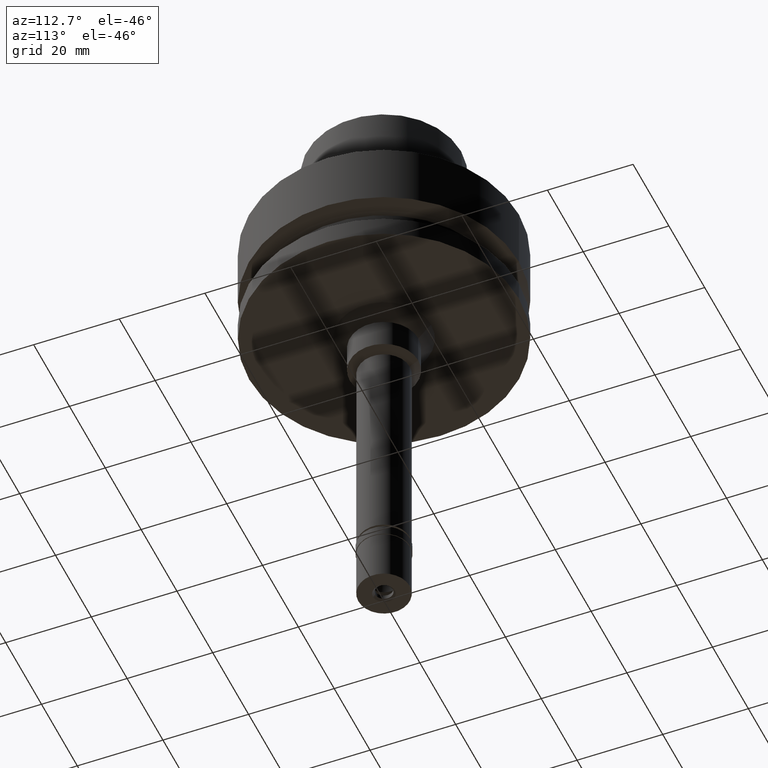
[diagram: clean part render]
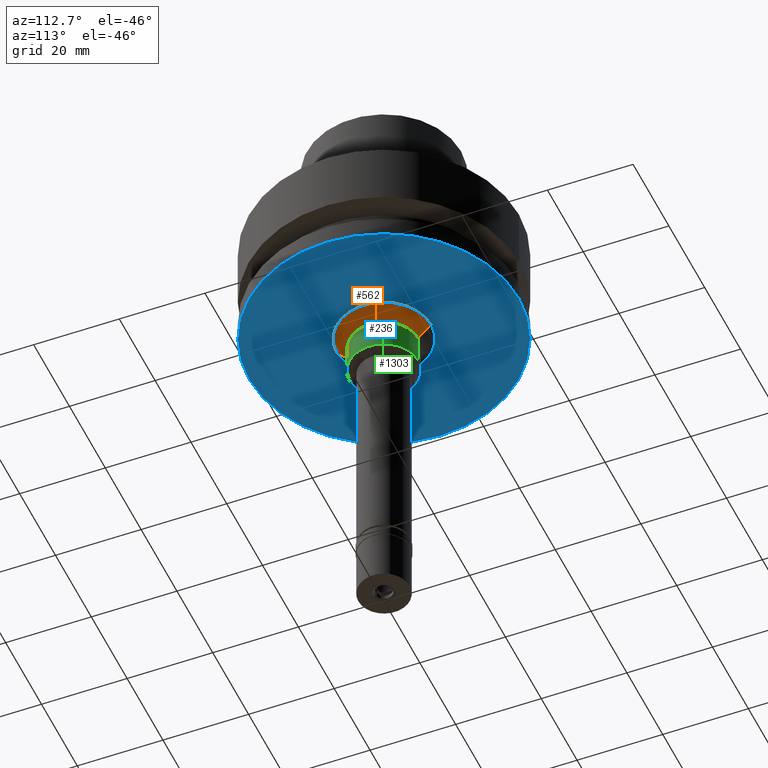
[diagram: same view with three faces highlighted in distinct colors, each labeled with its STEP entity id]
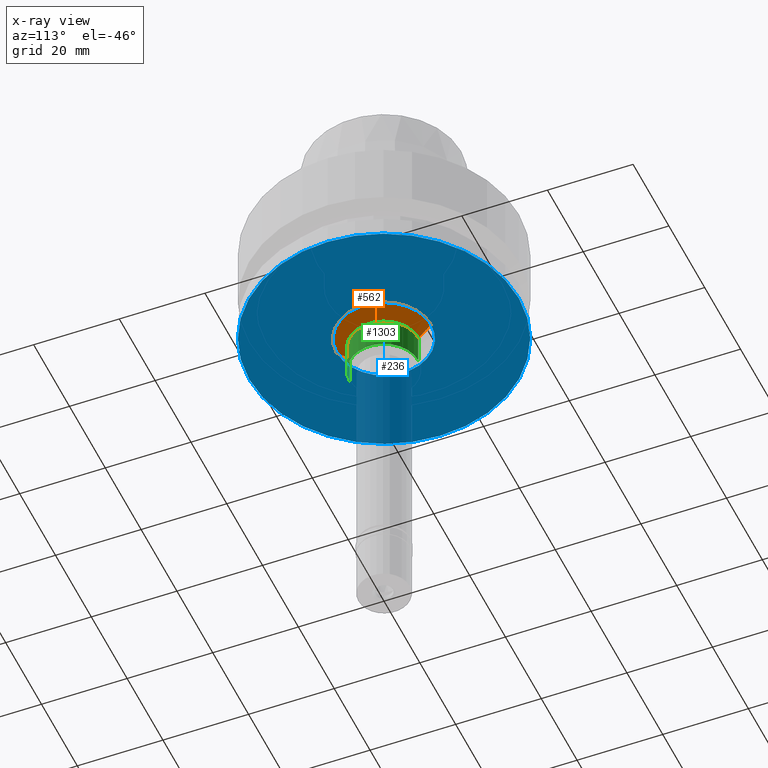
[diagram: x-ray of the same camera — body ghosted, the three highlighted faces saturated]
A machine part, auxiliary view with three faces highlighted in distinct colors.
The next image is the same camera in x-ray (body ghosted, the three faces saturated) — at least one of them is partly hidden behind the body in this view.
Their STEP definitions:

[orange] entity #562 — the highlighted conical surface has half-angle 45 deg.
#6 = VECTOR ( 'NONE', #1857, 1000.000000000000114 ) ;
#109 = EDGE_CURVE ( 'NONE', #1936, #2503, #434, .T. ) ;
#207 = DIRECTION ( 'NONE',  ( 0.0000000000000000000, 0.0000000000000000000, 1.000000000000000000 ) ) ;
#288 = CARTESIAN_POINT ( 'NONE',  ( 0.0000000000000000000, 0.0000000000000000000, -26.00000000000000000 ) ) ;
#345 = VECTOR ( 'NONE', #1336, 1000.000000000000114 ) ;
#434 = CIRCLE ( 'NONE', #850, 8.000000000000000000 ) ;
#440 = ORIENTED_EDGE ( 'NONE', *, *, #825, .T. ) ;
#562 = ADVANCED_FACE ( 'NONE', ( #2148 ), #981, .T. ) ;
#652 = CARTESIAN_POINT ( 'NONE',  ( 0.0000000000000000000, 11.00000000000000000, -26.00000000000000000 ) ) ;
#708 = AXIS2_PLACEMENT_3D ( 'NONE', #2191, #207, #1071 ) ;
#725 = DIRECTION ( 'NONE',  ( 0.0000000000000000000, 0.0000000000000000000, -1.000000000000000000 ) ) ;
#825 = EDGE_CURVE ( 'NONE', #2441, #2047, #2749, .T. ) ;
#850 = AXIS2_PLACEMENT_3D ( 'NONE', #2248, #725, #1579 ) ;
#981 = CONICAL_SURFACE ( 'NONE', #708, 9.500000000000000000, 0.7853981633972997312 ) ;
#982 = ORIENTED_EDGE ( 'NONE', *, *, #1405, .F. ) ;
#1054 = CARTESIAN_POINT ( 'NONE',  ( 0.0000000000000000000, 11.00000000000000000, -26.00000000000000000 ) ) ;
#1071 = DIRECTION ( 'NONE',  ( 0.0000000000000000000, 1.000000000000000000, 0.0000000000000000000 ) ) ;
#1156 = CARTESIAN_POINT ( 'NONE',  ( 0.0000000000000000000, 8.000000000000000000, -29.00000000000000000 ) ) ;
#1336 = DIRECTION ( 'NONE',  ( 0.0000000000000000000, -0.7071067811865474617, -0.7071067811865474617 ) ) ;
#1405 = EDGE_CURVE ( 'NONE', #2441, #1936, #1969, .T. ) ;
#1448 = CARTESIAN_POINT ( 'NONE',  ( 0.0000000000000000000, -11.00000000000000000, -26.00000000000000000 ) ) ;
#1579 = DIRECTION ( 'NONE',  ( 0.0000000000000000000, 1.000000000000000000, 0.0000000000000000000 ) ) ;
#1827 = EDGE_LOOP ( 'NONE', ( #440, #1852, #1906, #982 ) ) ;
#1852 = ORIENTED_EDGE ( 'NONE', *, *, #2189, .T. ) ;
#1857 = DIRECTION ( 'NONE',  ( 0.0000000000000000000, 0.7071067811865474617, -0.7071067811865474617 ) ) ;
#1906 = ORIENTED_EDGE ( 'NONE', *, *, #109, .F. ) ;
#1936 = VERTEX_POINT ( 'NONE', #1156 ) ;
#1969 = LINE ( 'NONE', #652, #345 ) ;
#2047 = VERTEX_POINT ( 'NONE', #2286 ) ;
#2148 = FACE_OUTER_BOUND ( 'NONE', #1827, .T. ) ;
#2169 = CARTESIAN_POINT ( 'NONE',  ( 0.0000000000000000000, -8.000000000000000000, -29.00000000000000000 ) ) ;
#2189 = EDGE_CURVE ( 'NONE', #2047, #2503, #2752, .T. ) ;
#2191 = CARTESIAN_POINT ( 'NONE',  ( 0.0000000000000000000, 0.0000000000000000000, -27.50000000000000000 ) ) ;
#2244 = AXIS2_PLACEMENT_3D ( 'NONE', #288, #2254, #2267 ) ;
#2248 = CARTESIAN_POINT ( 'NONE',  ( 0.0000000000000000000, 0.0000000000000000000, -29.00000000000000000 ) ) ;
#2254 = DIRECTION ( 'NONE',  ( 0.0000000000000000000, 0.0000000000000000000, -1.000000000000000000 ) ) ;
#2267 = DIRECTION ( 'NONE',  ( 0.0000000000000000000, 1.000000000000000000, 0.0000000000000000000 ) ) ;
#2286 = CARTESIAN_POINT ( 'NONE',  ( 0.0000000000000000000, -11.00000000000000000, -26.00000000000000000 ) ) ;
#2441 = VERTEX_POINT ( 'NONE', #1054 ) ;
#2503 = VERTEX_POINT ( 'NONE', #2169 ) ;
#2749 = CIRCLE ( 'NONE', #2244, 11.00000000000000000 ) ;
#2752 = LINE ( 'NONE', #1448, #6 ) ;

[blue] entity #236 — the highlighted planar face has unit normal (0, 0, 1).
#212 = DIRECTION ( 'NONE',  ( 0.0000000000000000000, -1.000000000000000000, 0.0000000000000000000 ) ) ;
#230 = DIRECTION ( 'NONE',  ( 0.0000000000000000000, 1.000000000000000000, 0.0000000000000000000 ) ) ;
#236 = ADVANCED_FACE ( 'NONE', ( #549, #1417 ), #2504, .F. ) ;
#288 = CARTESIAN_POINT ( 'NONE',  ( 0.0000000000000000000, 0.0000000000000000000, -26.00000000000000000 ) ) ;
#307 = EDGE_CURVE ( 'NONE', #2047, #2441, #1119, .T. ) ;
#310 = ORIENTED_EDGE ( 'NONE', *, *, #2573, .F. ) ;
#387 = DIRECTION ( 'NONE',  ( 0.0000000000000000000, 0.0000000000000000000, 1.000000000000000000 ) ) ;
#492 = CIRCLE ( 'NONE', #1355, 31.50000000000000000 ) ;
#503 = ORIENTED_EDGE ( 'NONE', *, *, #825, .F. ) ;
#534 = CIRCLE ( 'NONE', #1622, 31.50000000000000000 ) ;
#549 = FACE_OUTER_BOUND ( 'NONE', #2329, .T. ) ;
#620 = DIRECTION ( 'NONE',  ( 0.0000000000000000000, 0.0000000000000000000, -1.000000000000000000 ) ) ;
#685 = DIRECTION ( 'NONE',  ( 0.0000000000000000000, -1.000000000000000000, 0.0000000000000000000 ) ) ;
#825 = EDGE_CURVE ( 'NONE', #2441, #2047, #2749, .T. ) ;
#826 = ORIENTED_EDGE ( 'NONE', *, *, #307, .F. ) ;
#1054 = CARTESIAN_POINT ( 'NONE',  ( 0.0000000000000000000, 11.00000000000000000, -26.00000000000000000 ) ) ;
#1119 = CIRCLE ( 'NONE', #2106, 11.00000000000000000 ) ;
#1349 = VERTEX_POINT ( 'NONE', #2098 ) ;
#1355 = AXIS2_PLACEMENT_3D ( 'NONE', #2141, #387, #230 ) ;
#1385 = AXIS2_PLACEMENT_3D ( 'NONE', #2277, #1654, #2390 ) ;
#1417 = FACE_BOUND ( 'NONE', #2112, .T. ) ;
#1622 = AXIS2_PLACEMENT_3D ( 'NONE', #2152, #2597, #212 ) ;
#1654 = DIRECTION ( 'NONE',  ( 0.0000000000000000000, 0.0000000000000000000, 1.000000000000000000 ) ) ;
#1687 = CARTESIAN_POINT ( 'NONE',  ( 0.0000000000000000000, -31.50000000000000000, -26.00000000000000000 ) ) ;
#1792 = ORIENTED_EDGE ( 'NONE', *, *, #2384, .F. ) ;
#2047 = VERTEX_POINT ( 'NONE', #2286 ) ;
#2098 = CARTESIAN_POINT ( 'NONE',  ( 0.0000000000000000000, 31.50000000000000000, -26.00000000000000000 ) ) ;
#2106 = AXIS2_PLACEMENT_3D ( 'NONE', #2372, #620, #685 ) ;
#2112 = EDGE_LOOP ( 'NONE', ( #503, #826 ) ) ;
#2141 = CARTESIAN_POINT ( 'NONE',  ( 0.0000000000000000000, 0.0000000000000000000, -26.00000000000000000 ) ) ;
#2152 = CARTESIAN_POINT ( 'NONE',  ( 0.0000000000000000000, 0.0000000000000000000, -26.00000000000000000 ) ) ;
#2244 = AXIS2_PLACEMENT_3D ( 'NONE', #288, #2254, #2267 ) ;
#2254 = DIRECTION ( 'NONE',  ( 0.0000000000000000000, 0.0000000000000000000, -1.000000000000000000 ) ) ;
#2267 = DIRECTION ( 'NONE',  ( 0.0000000000000000000, 1.000000000000000000, 0.0000000000000000000 ) ) ;
#2277 = CARTESIAN_POINT ( 'NONE',  ( 0.0000000000000000000, 0.0000000000000000000, -26.00000000000000000 ) ) ;
#2286 = CARTESIAN_POINT ( 'NONE',  ( 0.0000000000000000000, -11.00000000000000000, -26.00000000000000000 ) ) ;
#2329 = EDGE_LOOP ( 'NONE', ( #1792, #310 ) ) ;
#2372 = CARTESIAN_POINT ( 'NONE',  ( 0.0000000000000000000, 0.0000000000000000000, -26.00000000000000000 ) ) ;
#2384 = EDGE_CURVE ( 'NONE', #1349, #2531, #492, .T. ) ;
#2390 = DIRECTION ( 'NONE',  ( 1.000000000000000000, 0.0000000000000000000, 0.0000000000000000000 ) ) ;
#2441 = VERTEX_POINT ( 'NONE', #1054 ) ;
#2504 = PLANE ( 'NONE',  #1385 ) ;
#2531 = VERTEX_POINT ( 'NONE', #1687 ) ;
#2573 = EDGE_CURVE ( 'NONE', #2531, #1349, #534, .T. ) ;
#2597 = DIRECTION ( 'NONE',  ( 0.0000000000000000000, 0.0000000000000000000, 1.000000000000000000 ) ) ;
#2749 = CIRCLE ( 'NONE', #2244, 11.00000000000000000 ) ;

[green] entity #1303 — the highlighted cylindrical surface (partial cylindrical patch) has radius 8 mm, axis along (0, 0, 1).
#26 = CARTESIAN_POINT ( 'NONE',  ( 0.0000000000000000000, -8.000000000000000000, -29.00000000000000000 ) ) ;
#109 = EDGE_CURVE ( 'NONE', #1936, #2503, #434, .T. ) ;
#344 = ORIENTED_EDGE ( 'NONE', *, *, #2228, .F. ) ;
#368 = EDGE_CURVE ( 'NONE', #2503, #1723, #1109, .T. ) ;
#434 = CIRCLE ( 'NONE', #850, 8.000000000000000000 ) ;
#647 = ORIENTED_EDGE ( 'NONE', *, *, #2272, .T. ) ;
#725 = DIRECTION ( 'NONE',  ( 0.0000000000000000000, 0.0000000000000000000, -1.000000000000000000 ) ) ;
#850 = AXIS2_PLACEMENT_3D ( 'NONE', #2248, #725, #1579 ) ;
#905 = VECTOR ( 'NONE', #2520, 1000.000000000000000 ) ;
#939 = FACE_OUTER_BOUND ( 'NONE', #2725, .T. ) ;
#1018 = CARTESIAN_POINT ( 'NONE',  ( 0.0000000000000000000, -8.000000000000000000, -35.84529946162000158 ) ) ;
#1109 = LINE ( 'NONE', #26, #2061 ) ;
#1156 = CARTESIAN_POINT ( 'NONE',  ( 0.0000000000000000000, 8.000000000000000000, -29.00000000000000000 ) ) ;
#1178 = CYLINDRICAL_SURFACE ( 'NONE', #1391, 8.000000000000000000 ) ;
#1189 = DIRECTION ( 'NONE',  ( 0.0000000000000000000, 0.0000000000000000000, 1.000000000000000000 ) ) ;
#1303 = ADVANCED_FACE ( 'NONE', ( #939 ), #1178, .T. ) ;
#1391 = AXIS2_PLACEMENT_3D ( 'NONE', #1801, #2040, #2692 ) ;
#1579 = DIRECTION ( 'NONE',  ( 0.0000000000000000000, 1.000000000000000000, 0.0000000000000000000 ) ) ;
#1631 = LINE ( 'NONE', #2505, #905 ) ;
#1715 = ORIENTED_EDGE ( 'NONE', *, *, #109, .T. ) ;
#1723 = VERTEX_POINT ( 'NONE', #1018 ) ;
#1793 = ORIENTED_EDGE ( 'NONE', *, *, #368, .T. ) ;
#1801 = CARTESIAN_POINT ( 'NONE',  ( 0.0000000000000000000, 0.0000000000000000000, -107.3000000000000114 ) ) ;
#1850 = VERTEX_POINT ( 'NONE', #2339 ) ;
#1936 = VERTEX_POINT ( 'NONE', #1156 ) ;
#1986 = AXIS2_PLACEMENT_3D ( 'NONE', #2109, #1189, #2049 ) ;
#2040 = DIRECTION ( 'NONE',  ( 0.0000000000000000000, 0.0000000000000000000, 1.000000000000000000 ) ) ;
#2049 = DIRECTION ( 'NONE',  ( 0.0000000000000000000, -1.000000000000000000, 0.0000000000000000000 ) ) ;
#2061 = VECTOR ( 'NONE', #2155, 1000.000000000000000 ) ;
#2109 = CARTESIAN_POINT ( 'NONE',  ( 0.0000000000000000000, 0.0000000000000000000, -35.84529946162000158 ) ) ;
#2155 = DIRECTION ( 'NONE',  ( 0.0000000000000000000, -1.141801047154000030E-14, -1.000000000000000000 ) ) ;
#2169 = CARTESIAN_POINT ( 'NONE',  ( 0.0000000000000000000, -8.000000000000000000, -29.00000000000000000 ) ) ;
#2228 = EDGE_CURVE ( 'NONE', #1936, #1850, #1631, .T. ) ;
#2248 = CARTESIAN_POINT ( 'NONE',  ( 0.0000000000000000000, 0.0000000000000000000, -29.00000000000000000 ) ) ;
#2272 = EDGE_CURVE ( 'NONE', #1723, #1850, #2477, .T. ) ;
#2339 = CARTESIAN_POINT ( 'NONE',  ( 0.0000000000000000000, 8.000000000000000000, -35.84529946162000158 ) ) ;
#2477 = CIRCLE ( 'NONE', #1986, 8.000000000000000000 ) ;
#2503 = VERTEX_POINT ( 'NONE', #2169 ) ;
#2505 = CARTESIAN_POINT ( 'NONE',  ( 0.0000000000000000000, 8.000000000000000000, -29.00000000000000000 ) ) ;
#2520 = DIRECTION ( 'NONE',  ( 0.0000000000000000000, 1.141801047154000030E-14, -1.000000000000000000 ) ) ;
#2692 = DIRECTION ( 'NONE',  ( 0.0000000000000000000, 1.000000000000000000, 0.0000000000000000000 ) ) ;
#2725 = EDGE_LOOP ( 'NONE', ( #1715, #1793, #647, #344 ) ) ;